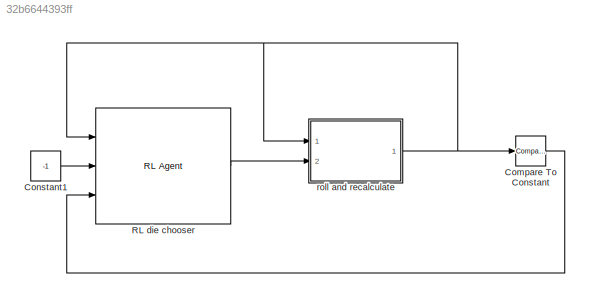
MODEL slx_32b6644393ff
KIND model
CONFIG AbsTol = auto
CONFIG EnableMultiTasking = off
CONFIG FixedStep = auto
CONFIG MaxStep = auto
CONFIG MinStep = auto
CONFIG RelTol = 1e-3
CONFIG SampleTimeConstraint = Unconstrained
CONFIG Solver = VariableStepAuto
CONFIG SolverName = VariableStepAuto
CONFIG StartTime = 0.0
CONFIG StopTime = 20
WORKSPACE source: mxarray member
WORKSPACE d = [1 2 1 2 3 1 2 4 2 4 1 3 ... (30 elements, 5x6)]
WORKSPACE seed = 1234
BLOCK [Reference] Compare To Constant  REF=simulink/Logic and Bit
Operations/Compare
To Constant
  Ports = [1, 1]
  SourceBlock = simulink/Logic and Bit\nOperations/Compare\nTo Constant
  SourceProductBaseCode = SL
  SourceType = Compare To Constant
BLOCK [Constant] Constant1
  Value = -1
BLOCK [Reference] RL die chooser  REF=rllib/RL Agent
  Ports = [3, 1]
  SourceBlock = rllib/RL Agent
  SourceProductBaseCode = RL
  SourceType = RL Agent
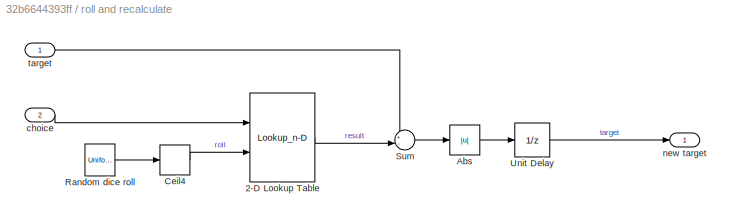
BLOCK [SubSystem] roll and recalculate
  Ports = [2, 1]
  RequestExecContextInheritance = off
BLOCK [Outport] roll and recalculate/ new target
BLOCK [Lookup_n-D] roll and recalculate/2-D Lookup Table
  BreakpointsForDimension1 = [1:3]
  BreakpointsForDimension2 = [1:3]
  BreakpointsSpecification = Even spacing
  InternalRulePriority = Speed
  Ports = [2, 1]
  RndMeth = Simplest
  Table = d
BLOCK [Abs] roll and recalculate/Abs
  SaturateOnIntegerOverflow = off
BLOCK [Rounding] roll and recalculate/Ceil4
  Operator = ceil
BLOCK [UniformRandomNumber] roll and recalculate/Random dice roll
  Maximum = size(d,2)
  Minimum = 0
  SampleTime = 1
  Seed = seed
BLOCK [Sum] roll and recalculate/Sum
  Inputs = +-|
  Ports = [2, 1]
BLOCK [UnitDelay] roll and recalculate/Unit Delay
  HasFrameUpgradeWarning = on
  InitialCondition = randi(20)
BLOCK [Inport] roll and recalculate/choice
  Port = 2
BLOCK [Inport] roll and recalculate/target
LINE Compare To Constant:1 -> RL die chooser:3
LINE Constant1:1 -> RL die chooser:2
LINE RL die chooser:1 -> roll and recalculate:2
LINE roll and recalculate/2-D Lookup Table:1 -> roll and recalculate/Sum:2
LINE roll and recalculate/Abs:1 -> roll and recalculate/Unit Delay:1
LINE roll and recalculate/Ceil4:1 -> roll and recalculate/2-D Lookup Table:2
LINE roll and recalculate/Random dice roll:1 -> roll and recalculate/Ceil4:1
LINE roll and recalculate/Sum:1 -> roll and recalculate/Abs:1
LINE roll and recalculate/Unit Delay:1 -> roll and recalculate/ new target:1
LINE roll and recalculate/choice:1 -> roll and recalculate/2-D Lookup Table:1
LINE roll and recalculate/target:1 -> roll and recalculate/Sum:1
NET roll and recalculate:1 -> Compare To Constant:1, RL die chooser:1, roll and recalculate:1
note: NET lines group one-source signal fan-out (src -> all destinations, sorted); 1:1 wires keep LINE
